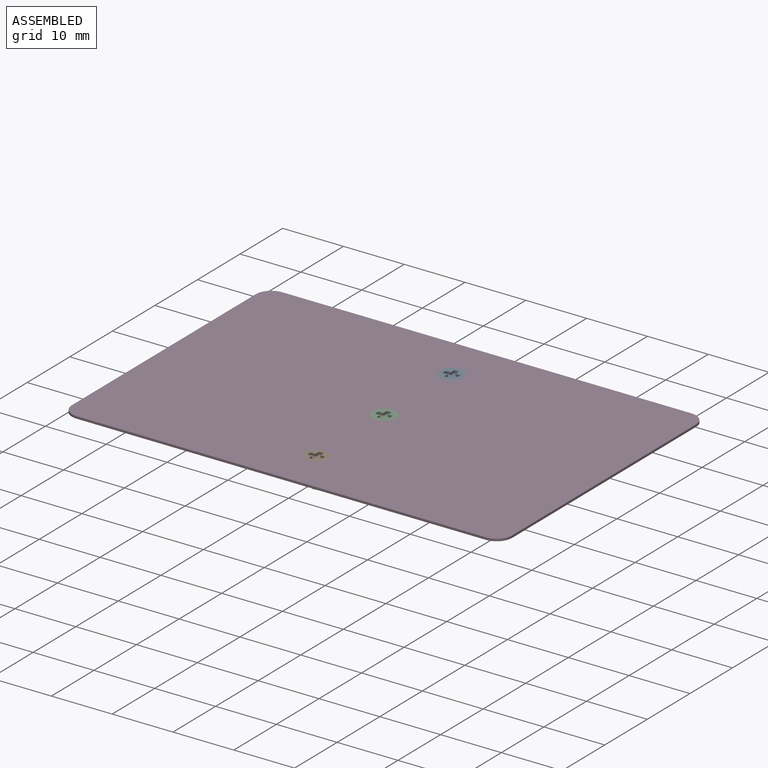
[diagram: assembled view]
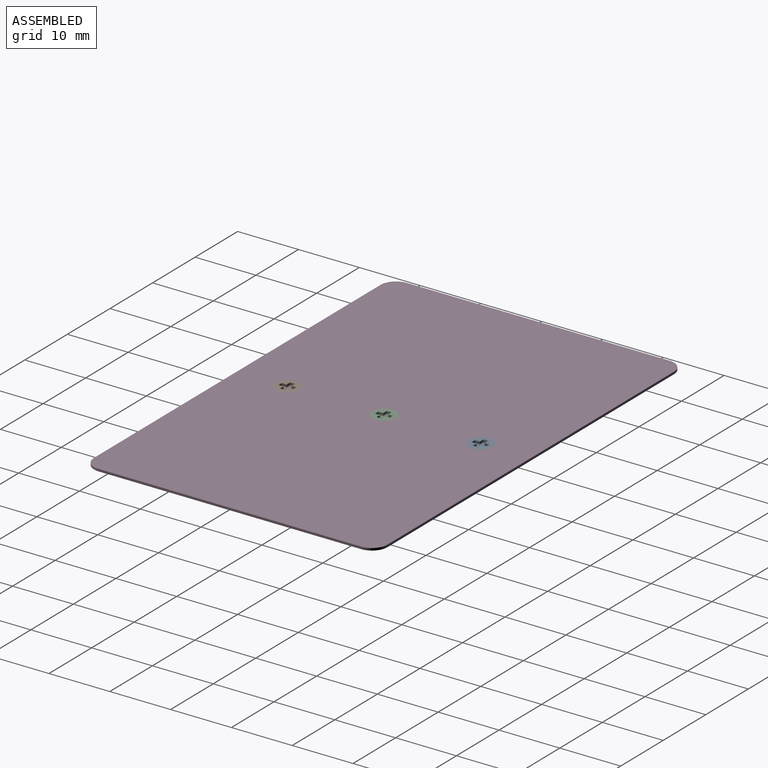
[diagram: assembled view, second angle]
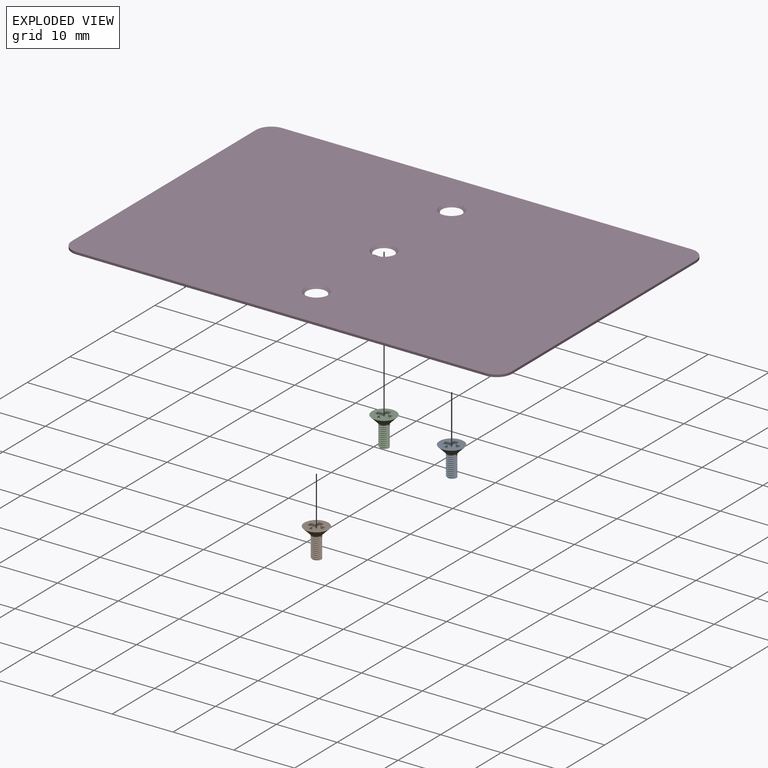
[diagram: exploded view]
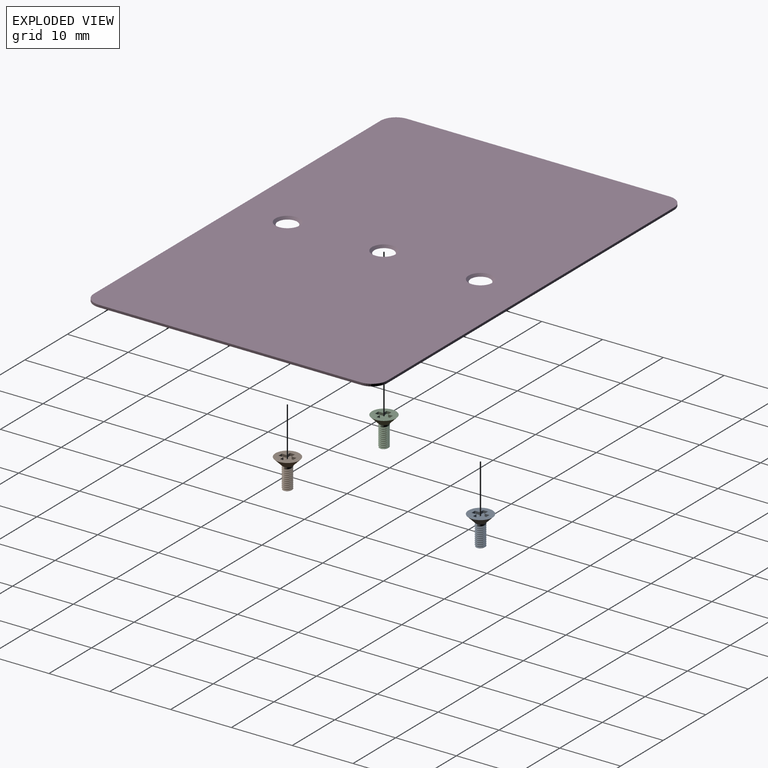
[diagram: exploded view, second angle]
ASSEMBLY  parts=4 mates=3
PART A: 21 faces, bbox 4.1x4.1x5.1 mm
  f0: plane 3.97x3.97mm, normal (0,0,1), area 9.2mm2, adj f1,f8,f9,f10,f11,f12,f13,f14
  f1: cone r=0.79mm half-angle=45deg, axis (0,0,1), area 14.7mm2, adj f0,f2
  f2: cylinder r=0.79mm len=1.59mm, axis (0,0,1), area 0.7mm2, adj f1,f5,f6
  f3: bspline ~3.72x1.83mm, area 12.7mm2, adj f4,f5,f6,f7
  f4: bspline ~3.57x1.83mm, area 12.1mm2, adj f3,f5,f7
  f5: plane 0.3x0.2mm, normal (0,-1,0), area 0mm2, adj f2,f3,f4,f6
  f6: bspline ~1.59x1.58mm, area 0mm2, adj f2,f3,f5
  f7: plane 1.55x1.55mm, normal (0,0,-1), area 1.5mm2, adj f3,f4
  f8: plane 0.79x0.42mm, normal (0,-1,0), area 0.3mm2, adj f0,f9,f19,f20
  f9: plane 0.79x0.42mm, normal (1,0,0), area 0.3mm2, adj f0,f8,f10,f20
  f10: plane 0.79x0.42mm, normal (0,-1,0), area 0.3mm2, adj f0,f9,f11,f20
  f11: plane 0.79x0.42mm, normal (1,0,0), area 0.3mm2, adj f0,f10,f12,f20
  f12: plane 0.79x0.42mm, normal (0,1,0), area 0.3mm2, adj f0,f11,f13,f20
  f13: plane 0.79x0.42mm, normal (1,0,0), area 0.3mm2, adj f0,f12,f14,f20
  f14: plane 0.79x0.42mm, normal (0,1,0), area 0.3mm2, adj f0,f13,f15,f20
  f15: plane 0.79x0.42mm, normal (-1,0,0), area 0.3mm2, adj f0,f14,f16,f20
  f16: plane 0.79x0.42mm, normal (0,1,0), area 0.3mm2, adj f0,f15,f17,f20
  f17: plane 0.79x0.42mm, normal (-1,0,0), area 0.3mm2, adj f0,f16,f18,f20
  f18: plane 0.79x0.42mm, normal (0,-1,0), area 0.3mm2, adj f0,f17,f19,f20
  f19: plane 0.79x0.42mm, normal (-1,0,0), area 0.3mm2, adj f0,f8,f18,f20
  f20: plane 2.38x2.38mm, normal (0,0,1), area 3.2mm2, adj f8,f9,f10,f11,f12,f13,f14,f15
PART B: same geometry as A
PART C: same geometry as A
PART D: 13 faces, bbox 72.4x48.3x0.4 mm
  f0: plane 72.39x48.26mm, normal (0,0,1), area 3451mm2, adj f1,f2,f3,f4,f5,f7,f8,f9
  f1: plane 67.31x0.38mm, normal (0,-1,0), area 25.6mm2, adj f0,f2,f6,f8
  f2: cylinder r=2.54mm len=2.54mm, axis (0,0,-1), area 1.5mm2, adj f0,f1,f3,f6
  f3: plane 43.18x0.38mm, normal (1,0,0), area 16.5mm2, adj f0,f2,f4,f6
  f4: cylinder r=2.54mm len=2.54mm, axis (0,0,-1), area 1.5mm2, adj f0,f3,f5,f6
  f5: plane 67.31x0.38mm, normal (0,1,0), area 25.6mm2, adj f0,f4,f6,f7
  f6: plane 72.39x48.26mm, normal (0,0,-1), area 3463.9mm2, adj f1,f2,f3,f4,f5,f7,f8,f9
  f7: cylinder r=2.54mm len=2.54mm, axis (0,0,-1), area 1.5mm2, adj f0,f5,f6,f9
  f8: cylinder r=2.54mm len=2.54mm, axis (0,0,-1), area 1.5mm2, adj f0,f1,f6,f9
  f9: plane 43.18x0.38mm, normal (-1,0,0), area 16.5mm2, adj f0,f6,f7,f8
  f10: cone r=1.35mm half-angle=45deg, axis (0,0,1), area 6.1mm2, adj f0,f6
  f11: cone r=1.35mm half-angle=45deg, axis (0,0,1), area 6.1mm2, adj f0,f6
  f12: cone r=1.35mm half-angle=45deg, axis (0,0,1), area 6.1mm2, adj f0,f6
PLACE A t=(23.83,95.92,-187.87)mm
PLACE B t=(23.83,64.17,-187.87)mm
PLACE C t=(23.83,80.05,-187.87)mm
PLACE D t=(174.41,-83.78,-150.46)mm
MATE fastened A.f1 <-> D.f12  axis (0,0,1) through (-24.34,95.92,-144.03)mm
MATE fastened C.f1 <-> D.f11  axis (0,0,1) through (-24.34,80.05,-144.03)mm
MATE fastened B.f1 <-> D.f10  axis (0,0,1) through (-24.34,64.17,-144.03)mm
